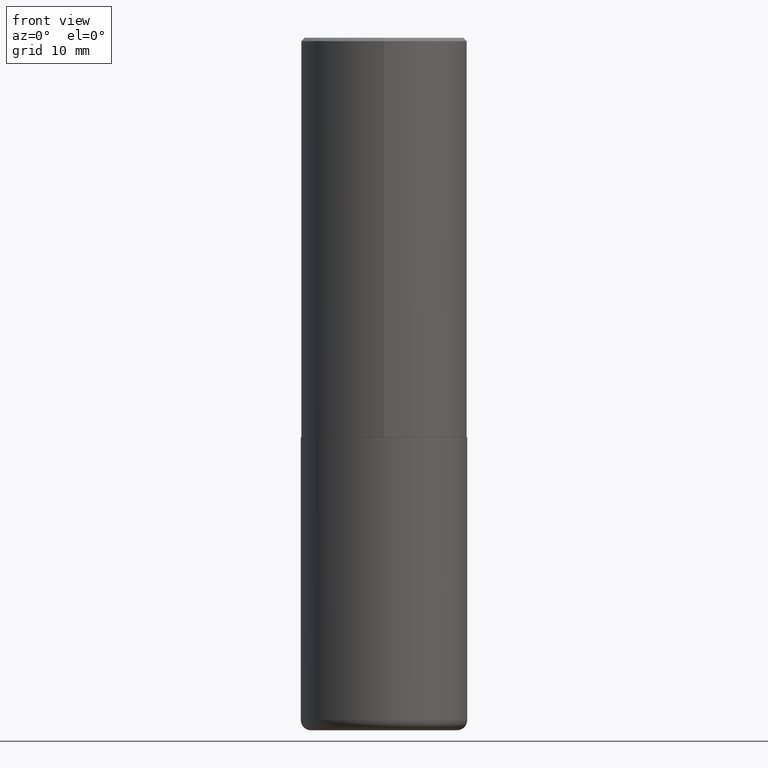
[diagram: clean part render]
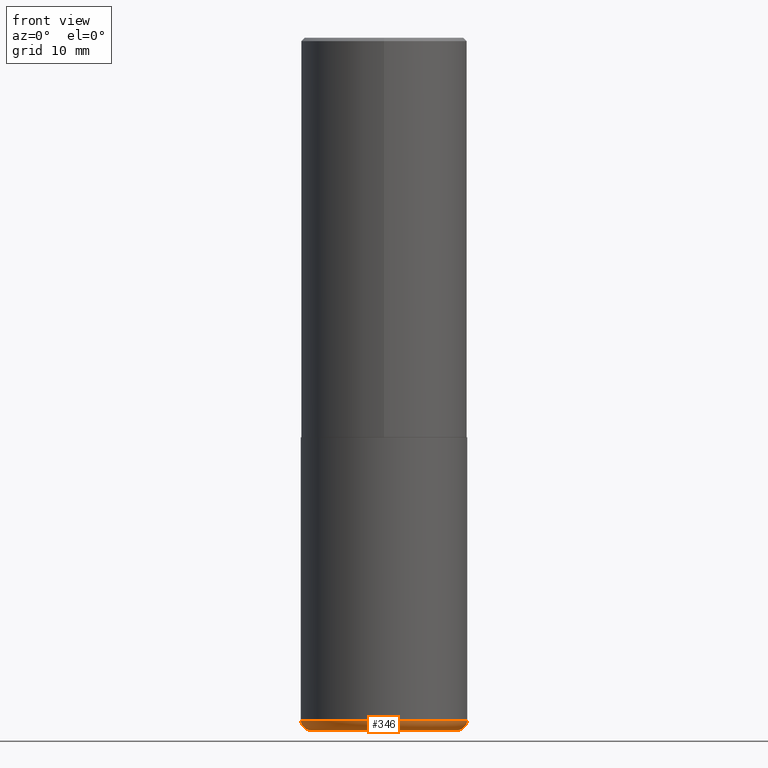
[diagram: same view with one face highlighted and labeled with its STEP entity id]
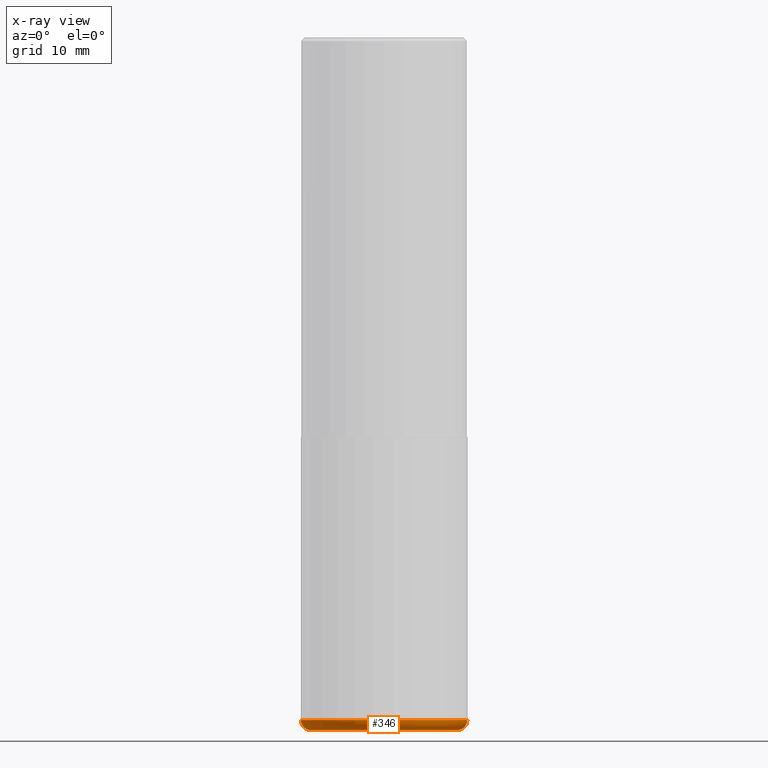
[diagram: x-ray of the same camera — body ghosted, the highlighted face saturated]
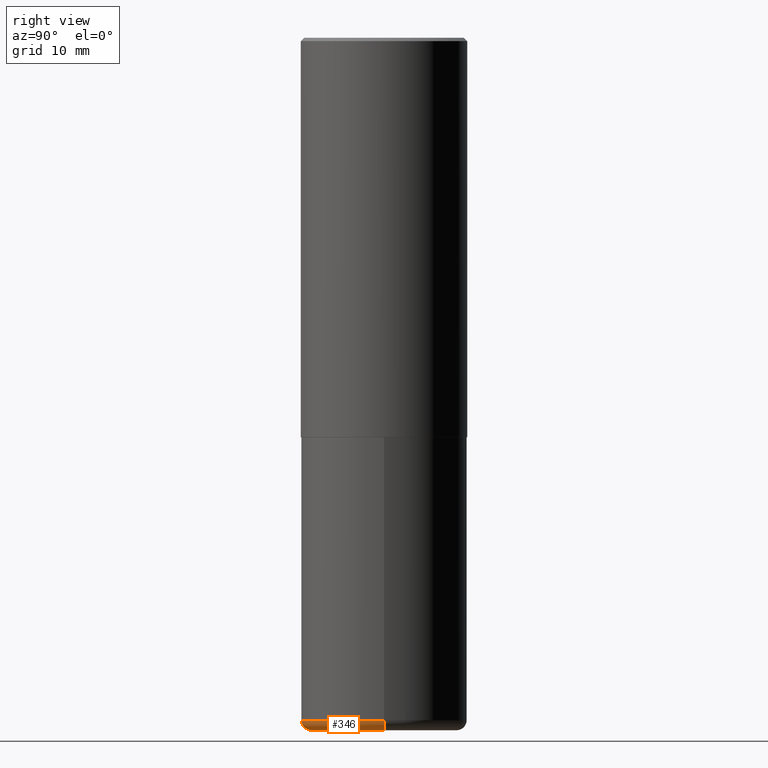
[diagram: same view with one face highlighted and labeled with its STEP entity id]
A machine part, front view. The second image highlights one B-rep face of the part: STEP entity #346.
The next image is the same camera in x-ray: the body ghosted, the highlighted face saturated — about 0% of this face is hidden behind the body in this view.
A second angle (right view) of the same face is appended — the face is thin or edge-on in the first view.
In plain terms, the highlighted toroidal blend (fillet) surface has major radius 10.9817 mm and minor (blend) radius 1.5189 mm.
Its self-contained STEP definition (entity closure, byte-faithful):
#17 = EDGE_CURVE ( 'NONE', #175, #288, #284, .T. ) ;
#22 = CARTESIAN_POINT ( 'NONE',  ( 1.001297202692504327E-28, -1.429587034189326465E-14, -4.094500000000000917 ) ) ;
#37 = DIRECTION ( 'NONE',  ( 1.000000000000000000, -6.982962677686265922E-15, 0.000000000000000000 ) ) ;
#40 = CARTESIAN_POINT ( 'NONE',  ( -0.4323499999999999566, -1.090699125381078817E-14, -4.094500000000000917 ) ) ;
#49 = CARTESIAN_POINT ( 'NONE',  ( -0.4921500000000000319, -1.059014368378710651E-14, -4.034700000000000841 ) ) ;
#69 = VERTEX_POINT ( 'NONE', #40 ) ;
#79 = CARTESIAN_POINT ( 'NONE',  ( 9.866732992315171563E-29, -1.408707975783044020E-14, -4.034700000000000841 ) ) ;
#90 = AXIS2_PLACEMENT_3D ( 'NONE', #167, #262, #37 ) ;
#92 = CARTESIAN_POINT ( 'NONE',  ( -0.4323499999999999566, -1.101504823977164696E-14, -4.034700000000000841 ) ) ;
#103 = AXIS2_PLACEMENT_3D ( 'NONE', #22, #406, #272 ) ;
#105 = ORIENTED_EDGE ( 'NONE', *, *, #224, .F. ) ;
#113 = DIRECTION ( 'NONE',  ( 1.000000000000000000, -6.982962677686264344E-15, 4.883557194083111780E-29 ) ) ;
#125 = DIRECTION ( 'NONE',  ( -6.982962677686266711E-15, -1.000000000000000000, 3.491481338843145583E-15 ) ) ;
#132 = VERTEX_POINT ( 'NONE', #295 ) ;
#160 = CARTESIAN_POINT ( 'NONE',  ( 0.4921500000000000319, -1.752374483965373598E-14, -4.034700000000000841 ) ) ;
#167 = CARTESIAN_POINT ( 'NONE',  ( 9.866732992315171563E-29, -1.408707975783044020E-14, -4.034700000000000841 ) ) ;
#169 = AXIS2_PLACEMENT_3D ( 'NONE', #79, #306, #113 ) ;
#175 = VERTEX_POINT ( 'NONE', #49 ) ;
#181 = DIRECTION ( 'NONE',  ( -1.000000000000000000, 7.105427357601017636E-15, 0.000000000000000000 ) ) ;
#185 = AXIS2_PLACEMENT_3D ( 'NONE', #92, #193, #181 ) ;
#193 = DIRECTION ( 'NONE',  ( 7.105427357601001859E-15, 1.000000000000000000, -3.491481338843145583E-15 ) ) ;
#221 = CIRCLE ( 'NONE', #379, 0.05980000000000013777 ) ;
#224 = EDGE_CURVE ( 'NONE', #69, #175, #382, .T. ) ;
#234 = ORIENTED_EDGE ( 'NONE', *, *, #17, .F. ) ;
#238 = ORIENTED_EDGE ( 'NONE', *, *, #299, .T. ) ;
#246 = DIRECTION ( 'NONE',  ( 1.000000000000000000, -6.982962677686294321E-15, 0.000000000000000000 ) ) ;
#262 = DIRECTION ( 'NONE',  ( -2.445468806185136597E-29, 3.491481338843145583E-15, 1.000000000000000000 ) ) ;
#272 = DIRECTION ( 'NONE',  ( 1.000000000000000000, -6.982962677686265133E-15, 0.000000000000000000 ) ) ;
#275 = EDGE_CURVE ( 'NONE', #69, #132, #409, .T. ) ;
#284 = CIRCLE ( 'NONE', #90, 0.4921499999999999764 ) ;
#288 = VERTEX_POINT ( 'NONE', #160 ) ;
#295 = CARTESIAN_POINT ( 'NONE',  ( 0.4323499999999999566, -1.731495425559091942E-14, -4.094500000000000917 ) ) ;
#299 = EDGE_CURVE ( 'NONE', #132, #288, #221, .T. ) ;
#300 = EDGE_LOOP ( 'NONE', ( #105, #365, #238, #234 ) ) ;
#306 = DIRECTION ( 'NONE',  ( -2.445468806185136597E-29, 3.491481338843145583E-15, 1.000000000000000000 ) ) ;
#308 = TOROIDAL_SURFACE ( 'NONE', #169, 0.4323499999999999566, 0.05980000000000013777 ) ;
#339 = FACE_OUTER_BOUND ( 'NONE', #300, .T. ) ;
#346 = ADVANCED_FACE ( 'NONE', ( #339 ), #308, .T. ) ;
#365 = ORIENTED_EDGE ( 'NONE', *, *, #275, .T. ) ;
#379 = AXIS2_PLACEMENT_3D ( 'NONE', #399, #125, #246 ) ;
#382 = CIRCLE ( 'NONE', #185, 0.05980000000000013777 ) ;
#399 = CARTESIAN_POINT ( 'NONE',  ( 0.4323499999999999566, -1.710616367152809970E-14, -4.034700000000000841 ) ) ;
#406 = DIRECTION ( 'NONE',  ( -2.445468806185136597E-29, 3.491481338843145583E-15, 1.000000000000000000 ) ) ;
#409 = CIRCLE ( 'NONE', #103, 0.4323499999999999566 ) ;